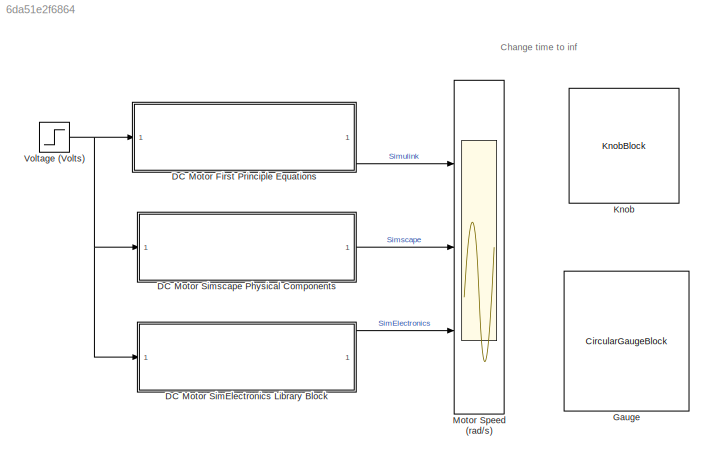
MODEL slx_6da51e2f6864
KIND model
CONFIG AbsTol = auto
CONFIG EnableMultiTasking = on
CONFIG FixedStep = auto
CONFIG MaxStep = auto
CONFIG MinStep = auto
CONFIG PreLoadFcn = J=0.01;\nKf=0.1;\nK=0.01;\nR=1;\nL=0.5;
CONFIG RelTol = 1e-3
CONFIG SampleTimeConstraint = Unconstrained
CONFIG Solver = ode15s
CONFIG SolverName = ode15s
CONFIG StartTime = 0.0
CONFIG StopTime = 5
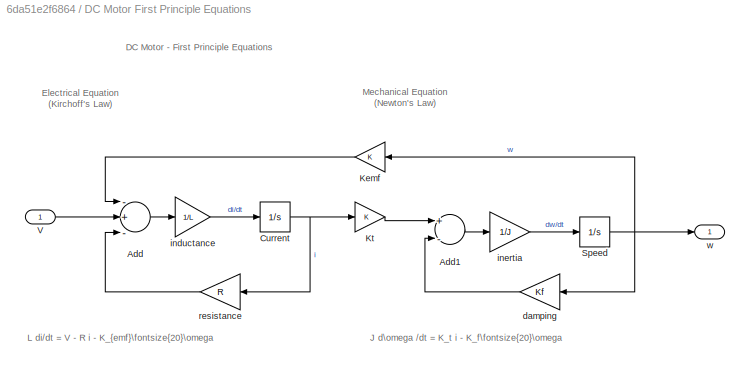
BLOCK [SubSystem] DC Motor First Principle Equations
  Ports = [1, 1]
  RequestExecContextInheritance = off
BLOCK [Sum] DC Motor First Principle Equations/Add
  InputSameDT = off
  Inputs = -+-
  OutDataTypeStr = Inherit: Inherit via internal rule
  Ports = [3, 1]
  SaturateOnIntegerOverflow = off
BLOCK [Sum] DC Motor First Principle Equations/Add1
  InputSameDT = off
  Inputs = +-
  OutDataTypeStr = Inherit: Inherit via internal rule
  Ports = [2, 1]
  SaturateOnIntegerOverflow = off
BLOCK [Integrator] DC Motor First Principle Equations/Current
  Ports = [1, 1]
BLOCK [Gain] DC Motor First Principle Equations/Kemf
  Gain = K
  OutDataTypeStr = Inherit: Inherit via internal rule
  ParamDataTypeStr = Inherit: Inherit via internal rule
  SaturateOnIntegerOverflow = off
BLOCK [Gain] DC Motor First Principle Equations/Kt
  Gain = K
  OutDataTypeStr = Inherit: Inherit via internal rule
  ParamDataTypeStr = Inherit: Inherit via internal rule
  SaturateOnIntegerOverflow = off
BLOCK [Integrator] DC Motor First Principle Equations/Speed
  Ports = [1, 1]
BLOCK [Inport] DC Motor First Principle Equations/V
  IconDisplay = Port number
BLOCK [Gain] DC Motor First Principle Equations/damping
  Gain = Kf
  OutDataTypeStr = Inherit: Inherit via internal rule
  ParamDataTypeStr = Inherit: Inherit via internal rule
  SaturateOnIntegerOverflow = off
BLOCK [Gain] DC Motor First Principle Equations/inductance
  Gain = 1/L
  OutDataTypeStr = Inherit: Inherit via internal rule
  ParamDataTypeStr = Inherit: Inherit via internal rule
  SaturateOnIntegerOverflow = off
BLOCK [Gain] DC Motor First Principle Equations/inertia
  Gain = 1/J
  OutDataTypeStr = Inherit: Inherit via internal rule
  ParamDataTypeStr = Inherit: Inherit via internal rule
  SaturateOnIntegerOverflow = off
BLOCK [Gain] DC Motor First Principle Equations/resistance
  Gain = R
  OutDataTypeStr = Inherit: Inherit via internal rule
  ParamDataTypeStr = Inherit: Inherit via internal rule
  SaturateOnIntegerOverflow = off
BLOCK [Outport] DC Motor First Principle Equations/w
  IconDisplay = Port number
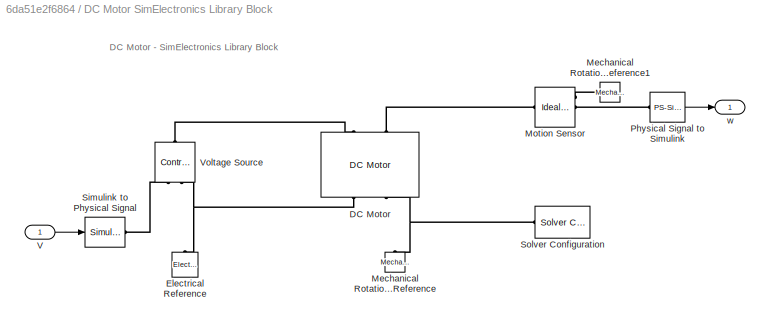
BLOCK [SubSystem] DC Motor SimElectronics Library Block
  Ports = [1, 1]
  RequestExecContextInheritance = off
BLOCK [Reference] DC Motor SimElectronics Library Block/DC Motor  REF=elec_lib/Actuators & Drivers/Rotational Actuators/DC Motor
  Ports = [0, 0, 0, 0, 0, 2, 2]
  SourceBlock = elec_lib/Actuators & Drivers/Rotational Actuators/DC Motor
  SourceProductBaseCode = SN
  SourceProductName = Simscape Electronics
  SourceType = DC Motor
BLOCK [Reference] DC Motor SimElectronics Library Block/Electrical Reference  REF=fl_lib/Electrical/Electrical Elements/Electrical Reference
  Ports = [0, 0, 0, 0, 0, 1]
  SourceBlock = fl_lib/Electrical/Electrical Elements/Electrical Reference
  SourceProductBaseCode = SS
  SourceProductName = Simscape
  SourceType = Electrical Reference
BLOCK [Reference] DC Motor SimElectronics Library Block/Mechanical Rotational Reference  REF=fl_lib/Mechanical/Rotational Elements/Mechanical
Rotational Reference
  Ports = [0, 0, 0, 0, 0, 1]
  SourceBlock = fl_lib/Mechanical/Rotational Elements/Mechanical\nRotational Reference
  SourceProductBaseCode = SS
  SourceProductName = Simscape
  SourceType = Mechanical\nRotational Reference
BLOCK [Reference] DC Motor SimElectronics Library Block/Mechanical Rotational Reference1  REF=fl_lib/Mechanical/Rotational Elements/Mechanical
Rotational Reference
  Ports = [0, 0, 0, 0, 0, 1]
  SourceBlock = fl_lib/Mechanical/Rotational Elements/Mechanical\nRotational Reference
  SourceProductBaseCode = SS
  SourceProductName = Simscape
  SourceType = Mechanical\nRotational Reference
BLOCK [Reference] DC Motor SimElectronics Library Block/Motion Sensor  REF=fl_lib/Mechanical/Mechanical Sensors/Ideal Rotational
Motion Sensor
  Ports = [0, 0, 0, 0, 0, 1, 3]
  SourceBlock = fl_lib/Mechanical/Mechanical Sensors/Ideal Rotational\nMotion Sensor
  SourceProductBaseCode = SS
  SourceProductName = Simscape
  SourceType = Ideal Rotational\nMotion Sensor
BLOCK [Reference] DC Motor SimElectronics Library Block/Physical Signal to Simulink  REF=nesl_utility/PS-Simulink
Converter
  Ports = [0, 1, 0, 0, 0, 1]
  SourceBlock = nesl_utility/PS-Simulink\nConverter
  SourceProductBaseCode = SS
  SourceProductName = Simscape
  SourceType = PS-Simulink\nConverter
BLOCK [Reference] DC Motor SimElectronics Library Block/Simulink to Physical Signal  REF=nesl_utility/Simulink-PS
Converter
  Ports = [1, 0, 0, 0, 0, 0, 1]
  SourceBlock = nesl_utility/Simulink-PS\nConverter
  SourceProductBaseCode = SS
  SourceProductName = Simscape
  SourceType = Simulink-PS\nConverter
BLOCK [Reference] DC Motor SimElectronics Library Block/Solver Configuration  REF=nesl_utility/Solver
Configuration
  Ports = [0, 0, 0, 0, 0, 0, 1]
  SourceBlock = nesl_utility/Solver\nConfiguration
  SourceProductBaseCode = SS
  SourceProductName = Simscape
  SourceType = Solver\nConfiguration
BLOCK [Inport] DC Motor SimElectronics Library Block/V
  IconDisplay = Port number
BLOCK [Reference] DC Motor SimElectronics Library Block/Voltage Source  REF=fl_lib/Electrical/Electrical Sources/Controlled Voltage
Source
  Ports = [0, 0, 0, 0, 0, 1, 2]
  SourceBlock = fl_lib/Electrical/Electrical Sources/Controlled Voltage\nSource
  SourceProductBaseCode = SS
  SourceProductName = Simscape
  SourceType = Controlled Voltage\nSource
BLOCK [Outport] DC Motor SimElectronics Library Block/w
  IconDisplay = Port number
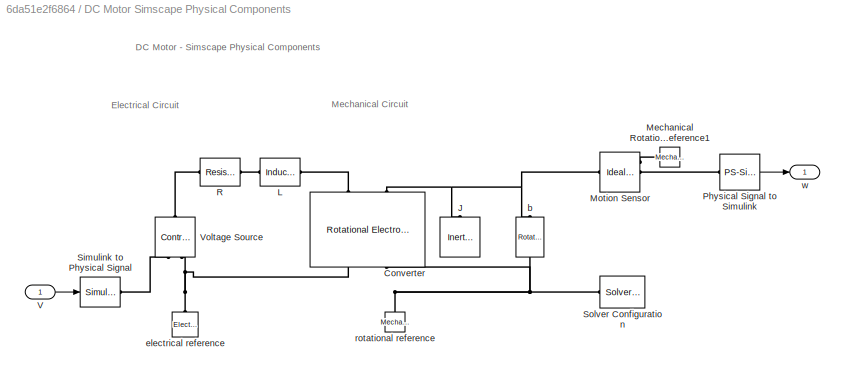
BLOCK [SubSystem] DC Motor Simscape Physical Components
  Ports = [1, 1]
  RequestExecContextInheritance = off
BLOCK [Reference] DC Motor Simscape Physical Components/Converter  REF=fl_lib/Electrical/Electrical Elements/Rotational
Electromechanical
Converter
  Ports = [0, 0, 0, 0, 0, 2, 2]
  SourceBlock = fl_lib/Electrical/Electrical Elements/Rotational\nElectromechanical\nConverter
  SourceProductBaseCode = SS
  SourceProductName = Simscape
  SourceType = Rotational\nElectromechanical\nConverter
BLOCK [Reference] DC Motor Simscape Physical Components/J  REF=fl_lib/Mechanical/Rotational Elements/Inertia
  Ports = [0, 0, 0, 0, 0, 1]
  SourceBlock = fl_lib/Mechanical/Rotational Elements/Inertia
  SourceProductBaseCode = SS
  SourceProductName = Simscape
  SourceType = Inertia
BLOCK [Reference] DC Motor Simscape Physical Components/L  REF=fl_lib/Electrical/Electrical Elements/Inductor
  Ports = [0, 0, 0, 0, 0, 1, 1]
  SourceBlock = fl_lib/Electrical/Electrical Elements/Inductor
  SourceProductBaseCode = SS
  SourceProductName = Simscape
  SourceType = Inductor
BLOCK [Reference] DC Motor Simscape Physical Components/Mechanical Rotational Reference1  REF=fl_lib/Mechanical/Rotational Elements/Mechanical
Rotational Reference
  Ports = [0, 0, 0, 0, 0, 1]
  SourceBlock = fl_lib/Mechanical/Rotational Elements/Mechanical\nRotational Reference
  SourceProductBaseCode = SS
  SourceProductName = Simscape
  SourceType = Mechanical\nRotational Reference
BLOCK [Reference] DC Motor Simscape Physical Components/Motion Sensor  REF=fl_lib/Mechanical/Mechanical Sensors/Ideal Rotational
Motion Sensor
  Ports = [0, 0, 0, 0, 0, 1, 3]
  SourceBlock = fl_lib/Mechanical/Mechanical Sensors/Ideal Rotational\nMotion Sensor
  SourceProductBaseCode = SS
  SourceProductName = Simscape
  SourceType = Ideal Rotational\nMotion Sensor
BLOCK [Reference] DC Motor Simscape Physical Components/Physical Signal to Simulink  REF=nesl_utility/PS-Simulink
Converter
  Ports = [0, 1, 0, 0, 0, 1]
  SourceBlock = nesl_utility/PS-Simulink\nConverter
  SourceProductBaseCode = SS
  SourceProductName = Simscape
  SourceType = PS-Simulink\nConverter
BLOCK [Reference] DC Motor Simscape Physical Components/R  REF=fl_lib/Electrical/Electrical Elements/Resistor
  Ports = [0, 0, 0, 0, 0, 1, 1]
  SourceBlock = fl_lib/Electrical/Electrical Elements/Resistor
  SourceProductBaseCode = SS
  SourceProductName = Simscape
  SourceType = Resistor
  Tag = Factory Generic
BLOCK [Reference] DC Motor Simscape Physical Components/Simulink to Physical Signal  REF=nesl_utility/Simulink-PS
Converter
  Ports = [1, 0, 0, 0, 0, 0, 1]
  SourceBlock = nesl_utility/Simulink-PS\nConverter
  SourceProductBaseCode = SS
  SourceProductName = Simscape
  SourceType = Simulink-PS\nConverter
BLOCK [Reference] DC Motor Simscape Physical Components/Solver Configuration  REF=nesl_utility/Solver
Configuration
  Ports = [0, 0, 0, 0, 0, 0, 1]
  SourceBlock = nesl_utility/Solver\nConfiguration
  SourceProductBaseCode = SS
  SourceProductName = Simscape
  SourceType = Solver\nConfiguration
BLOCK [Inport] DC Motor Simscape Physical Components/V
  IconDisplay = Port number
BLOCK [Reference] DC Motor Simscape Physical Components/Voltage Source  REF=fl_lib/Electrical/Electrical Sources/Controlled Voltage
Source
  Ports = [0, 0, 0, 0, 0, 1, 2]
  SourceBlock = fl_lib/Electrical/Electrical Sources/Controlled Voltage\nSource
  SourceProductBaseCode = SS
  SourceProductName = Simscape
  SourceType = Controlled Voltage\nSource
BLOCK [Reference] DC Motor Simscape Physical Components/b  REF=fl_lib/Mechanical/Rotational Elements/Rotational Damper
  Ports = [0, 0, 0, 0, 0, 1, 1]
  SourceBlock = fl_lib/Mechanical/Rotational Elements/Rotational Damper
  SourceProductBaseCode = SS
  SourceProductName = Simscape
  SourceType = Rotational Damper
BLOCK [Reference] DC Motor Simscape Physical Components/electrical reference  REF=fl_lib/Electrical/Electrical Elements/Electrical Reference
  Ports = [0, 0, 0, 0, 0, 1]
  SourceBlock = fl_lib/Electrical/Electrical Elements/Electrical Reference
  SourceProductBaseCode = SS
  SourceProductName = Simscape
  SourceType = Electrical Reference
BLOCK [Reference] DC Motor Simscape Physical Components/rotational reference  REF=fl_lib/Mechanical/Rotational Elements/Mechanical
Rotational Reference
  Ports = [0, 0, 0, 0, 0, 1]
  SourceBlock = fl_lib/Mechanical/Rotational Elements/Mechanical\nRotational Reference
  SourceProductBaseCode = SS
  SourceProductName = Simscape
  SourceType = Mechanical\nRotational Reference
BLOCK [Outport] DC Motor Simscape Physical Components/w
  IconDisplay = Port number
BLOCK [CircularGaugeBlock] Gauge
  ScaleMax = 1
  WebBlockId = 66
BLOCK [KnobBlock] Knob
  ScaleMax = 5
  WebBlockId = 65
BLOCK [Scope] Motor Speed (rad//s)
  Floating = off
  NumInputPorts = 3
  Ports = [3]
  ScopeSpecificationString = Simulink.scopes.TimeScopeBlockCfg('CurrentConfiguration', extmgr.ConfigurationSet(extmgr.Configuration('Core','General UI',true,'FigureColor',[0.247058823529412 0.247058823529412 0.247058823529412]),extmgr.Configuration('Core','Source UI',true),extmgr.Configuration('Sources','WiredSimulink',true,'DataLoggingSaveFormat','StructureWithTime','DataLoggingDecimation','1','DataLoggingDecimateData',true)...<+5794ch>
BLOCK [Step] Voltage (Volts)
  After = 0.9655958811442057
  SampleTime = 0
ANNOTATION (root): Change time to inf
ANNOTATION DC Motor First Principle Equations: Electrical Equation (Kirchoff's Law)
ANNOTATION DC Motor First Principle Equations: Mechanical Equation (Newton's Law)
ANNOTATION DC Motor First Principle Equations: DC Motor - First Principle Equations
ANNOTATION DC Motor First Principle Equations: J d\omega /dt = K_t i - K_f\fontsize{20}\omega
ANNOTATION DC Motor First Principle Equations: L di/dt = V - R i - K_{emf}\fontsize{20}\omega
ANNOTATION DC Motor SimElectronics Library Block: DC Motor - SimElectronics Library Block
ANNOTATION DC Motor Simscape Physical Components: Mechanical Circuit
ANNOTATION DC Motor Simscape Physical Components: Electrical Circuit
ANNOTATION DC Motor Simscape Physical Components: DC Motor - Simscape Physical Components
LINE DC Motor First Principle Equations/Add1:1 -> DC Motor First Principle Equations/inertia:1
LINE DC Motor First Principle Equations/Add:1 -> DC Motor First Principle Equations/inductance:1
NET DC Motor First Principle Equations/Current:1 -> DC Motor First Principle Equations/Kt:1, DC Motor First Principle Equations/resistance:1
LINE DC Motor First Principle Equations/Kemf:1 -> DC Motor First Principle Equations/Add:1
LINE DC Motor First Principle Equations/Kt:1 -> DC Motor First Principle Equations/Add1:1
NET DC Motor First Principle Equations/Speed:1 -> DC Motor First Principle Equations/Kemf:1, DC Motor First Principle Equations/damping:1, DC Motor First Principle Equations/w:1
LINE DC Motor First Principle Equations/V:1 -> DC Motor First Principle Equations/Add:2
LINE DC Motor First Principle Equations/damping:1 -> DC Motor First Principle Equations/Add1:2
LINE DC Motor First Principle Equations/inductance:1 -> DC Motor First Principle Equations/Current:1
LINE DC Motor First Principle Equations/inertia:1 -> DC Motor First Principle Equations/Speed:1
LINE DC Motor First Principle Equations/resistance:1 -> DC Motor First Principle Equations/Add:3
LINE DC Motor First Principle Equations:1 -> Motor Speed (rad//s):1
LINE DC Motor SimElectronics Library Block/Physical Signal to Simulink:1 -> DC Motor SimElectronics Library Block/w:1
LINE DC Motor SimElectronics Library Block/V:1 -> DC Motor SimElectronics Library Block/Simulink to Physical Signal:1
LINE DC Motor SimElectronics Library Block:1 -> Motor Speed (rad//s):3
LINE DC Motor Simscape Physical Components/Physical Signal to Simulink:1 -> DC Motor Simscape Physical Components/w:1
LINE DC Motor Simscape Physical Components/V:1 -> DC Motor Simscape Physical Components/Simulink to Physical Signal:1
LINE DC Motor Simscape Physical Components:1 -> Motor Speed (rad//s):2
NET Voltage (Volts):1 -> DC Motor First Principle Equations:1, DC Motor SimElectronics Library Block:1, DC Motor Simscape Physical Components:1
PLINE DC Motor SimElectronics Library Block/DC Motor:LConn1 -- DC Motor SimElectronics Library Block/Voltage Source:LConn1
PLINE DC Motor SimElectronics Library Block/DC Motor:LConn2 -- DC Motor SimElectronics Library Block/Motion Sensor:LConn1
PNET net1: DC Motor SimElectronics Library Block/DC Motor:RConn1 -- DC Motor SimElectronics Library Block/Electrical Reference:LConn1 -- DC Motor SimElectronics Library Block/Voltage Source:RConn2
PNET net2: DC Motor SimElectronics Library Block/DC Motor:RConn2 -- DC Motor SimElectronics Library Block/Mechanical Rotational Reference:LConn1 -- DC Motor SimElectronics Library Block/Solver Configuration:RConn1
PLINE DC Motor SimElectronics Library Block/Mechanical Rotational Reference1:LConn1 -- DC Motor SimElectronics Library Block/Motion Sensor:RConn1
PLINE DC Motor SimElectronics Library Block/Motion Sensor:RConn2 -- DC Motor SimElectronics Library Block/Physical Signal to Simulink:LConn1
PLINE DC Motor SimElectronics Library Block/Simulink to Physical Signal:RConn1 -- DC Motor SimElectronics Library Block/Voltage Source:RConn1
PLINE DC Motor Simscape Physical Components/Converter:LConn1 -- DC Motor Simscape Physical Components/L:RConn1
PNET net3: DC Motor Simscape Physical Components/Converter:LConn2 -- DC Motor Simscape Physical Components/J:LConn1 -- DC Motor Simscape Physical Components/Motion Sensor:LConn1 -- DC Motor Simscape Physical Components/b:LConn1
PNET net4: DC Motor Simscape Physical Components/Converter:RConn1 -- DC Motor Simscape Physical Components/Voltage Source:RConn2 -- DC Motor Simscape Physical Components/electrical reference:LConn1
PNET net5: DC Motor Simscape Physical Components/Converter:RConn2 -- DC Motor Simscape Physical Components/Solver Configuration:RConn1 -- DC Motor Simscape Physical Components/b:RConn1 -- DC Motor Simscape Physical Components/rotational reference:LConn1
PLINE DC Motor Simscape Physical Components/L:LConn1 -- DC Motor Simscape Physical Components/R:RConn1
PLINE DC Motor Simscape Physical Components/Mechanical Rotational Reference1:LConn1 -- DC Motor Simscape Physical Components/Motion Sensor:RConn1
PLINE DC Motor Simscape Physical Components/Motion Sensor:RConn2 -- DC Motor Simscape Physical Components/Physical Signal to Simulink:LConn1
PLINE DC Motor Simscape Physical Components/R:LConn1 -- DC Motor Simscape Physical Components/Voltage Source:LConn1
PLINE DC Motor Simscape Physical Components/Simulink to Physical Signal:RConn1 -- DC Motor Simscape Physical Components/Voltage Source:RConn1
note: NET lines group one-source signal fan-out (src -> all destinations, sorted); 1:1 wires keep LINE; PNET lines group multi-terminal physical nets as a canonical sorted terminal list (undirected conserving connections); 2-terminal nets keep the pairwise PLINE form
